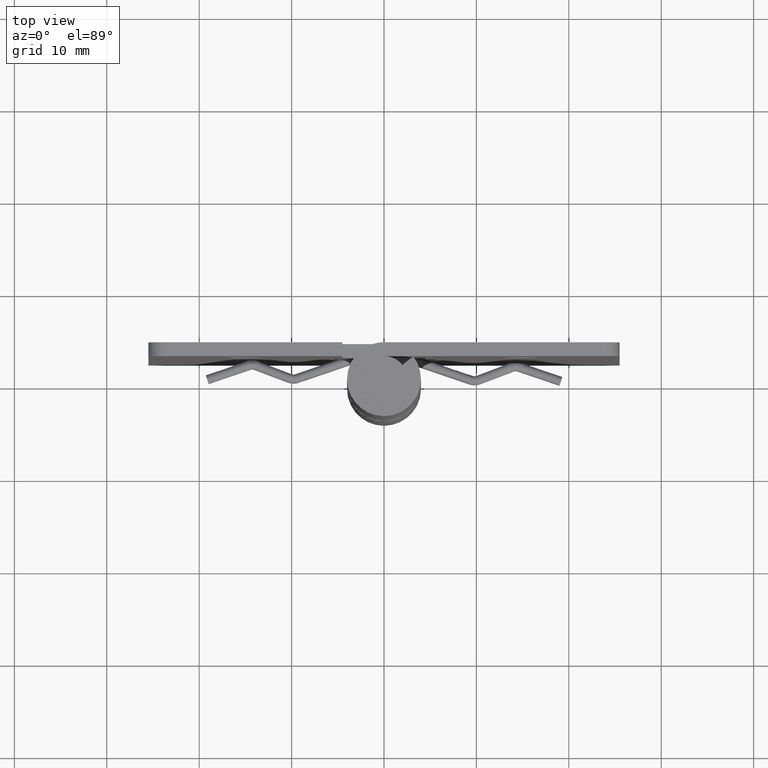
[diagram: clean part render]
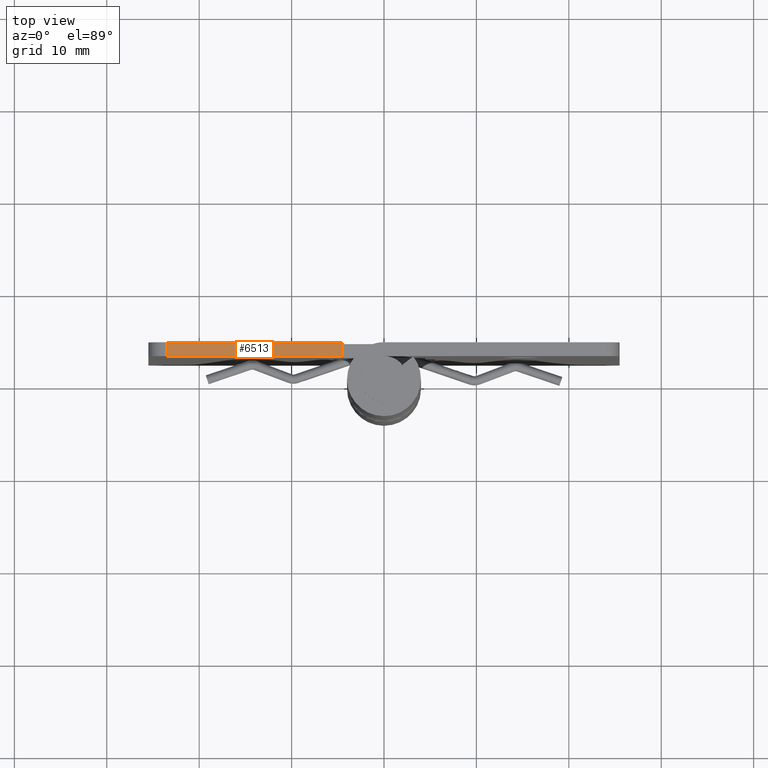
[diagram: same view with one face highlighted and labeled with its STEP entity id]
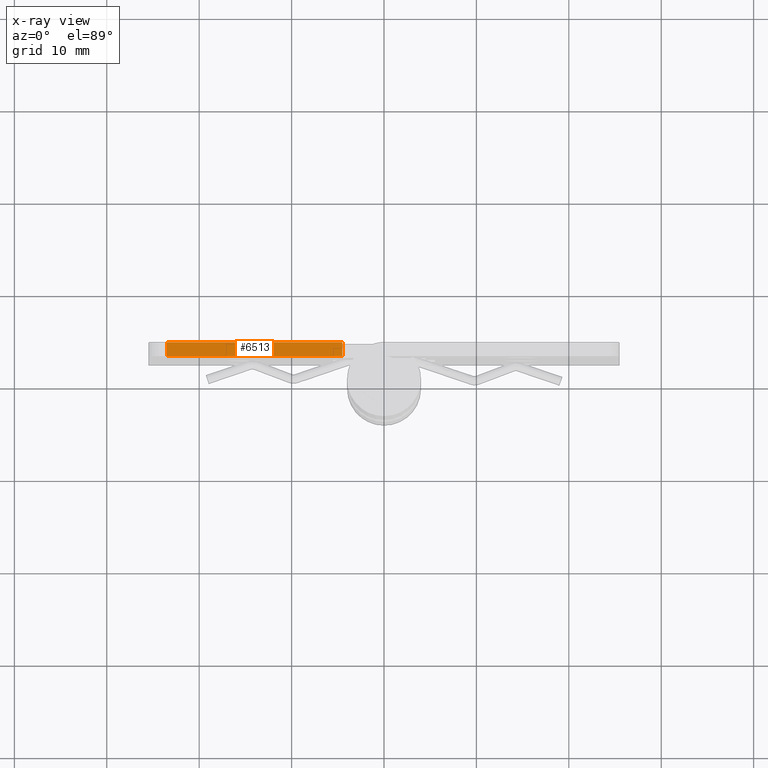
[diagram: x-ray of the same camera — body ghosted, the highlighted face saturated]
A machine part, top view. The second image highlights one B-rep face of the part: STEP entity #6513.
The next image is the same camera in x-ray: the body ghosted, the highlighted face saturated — about 0% of this face is hidden behind the body in this view.
In plain terms, the highlighted face is a freeform B-spline surface patch.
Its self-contained STEP definition (entity closure, byte-faithful):
#6125=CARTESIAN_POINT('',(-4.500000000000000,2.499999999999945,59.999985000000002));
#6126=VERTEX_POINT('',#6125);
#6141=CARTESIAN_POINT('',(-4.500000000000000,4.0,59.999985000000002));
#6142=VERTEX_POINT('',#6141);
#6148=CARTESIAN_POINT('',(-4.500000000000000,4.0,59.999985000000002));
#6149=CARTESIAN_POINT('',(-4.500000000000000,2.499999999999945,59.999985000000002));
#6150=QUASI_UNIFORM_CURVE('',1,(#6148,#6149),.UNSPECIFIED.,.F.,.U.);
#6151=EDGE_CURVE('',#6142,#6126,#6150,.T.);
#6346=CARTESIAN_POINT('',(-23.500000000000000,2.500000000000000,59.999985000000002));
#6347=VERTEX_POINT('',#6346);
#6363=CARTESIAN_POINT('',(-23.500000000000000,4.0,59.999985000000002));
#6364=VERTEX_POINT('',#6363);
#6365=CARTESIAN_POINT('',(-23.500000000000000,4.0,59.999985000000002));
#6366=CARTESIAN_POINT('',(-23.500000000000000,2.500000000000000,59.999985000000002));
#6367=QUASI_UNIFORM_CURVE('',1,(#6365,#6366),.UNSPECIFIED.,.F.,.U.);
#6368=EDGE_CURVE('',#6364,#6347,#6367,.T.);
#6494=CARTESIAN_POINT('',(-24.449049963174311,2.425075002907233,59.999985000000002));
#6495=CARTESIAN_POINT('',(-3.550949527205974,2.425075002907233,59.999985000000002));
#6496=CARTESIAN_POINT('',(-24.449049963174311,4.074925037325847,59.999985000000002));
#6497=CARTESIAN_POINT('',(-3.550949527205974,4.074925037325847,59.999985000000002));
#6498=B_SPLINE_SURFACE_WITH_KNOTS('',1,1,((#6494,#6496),(#6495,#6497)),.UNSPECIFIED.,.F.,.F.,.U.,(2,2),(2,2),(0.0,20.898100435968342),(0.041708334948495,0.958291687403247),.UNSPECIFIED.);
#6499=CARTESIAN_POINT('',(-23.500000000000000,2.500000000000000,59.999985000000002));
#6500=CARTESIAN_POINT('',(-4.500000000000000,2.499999999999945,59.999985000000002));
#6501=QUASI_UNIFORM_CURVE('',1,(#6499,#6500),.UNSPECIFIED.,.F.,.U.);
#6502=EDGE_CURVE('',#6347,#6126,#6501,.T.);
#6503=ORIENTED_EDGE('',*,*,#6502,.T.);
#6504=ORIENTED_EDGE('',*,*,#6151,.F.);
#6505=CARTESIAN_POINT('',(-4.500000000000000,4.0,59.999985000000002));
#6506=CARTESIAN_POINT('',(-23.500000000000000,4.0,59.999985000000002));
#6507=QUASI_UNIFORM_CURVE('',1,(#6505,#6506),.UNSPECIFIED.,.F.,.U.);
#6508=EDGE_CURVE('',#6142,#6364,#6507,.T.);
#6509=ORIENTED_EDGE('',*,*,#6508,.T.);
#6510=ORIENTED_EDGE('',*,*,#6368,.T.);
#6511=EDGE_LOOP('',(#6503,#6504,#6509,#6510));
#6512=FACE_OUTER_BOUND('',#6511,.T.);
#6513=ADVANCED_FACE('',(#6512),#6498,.T.);